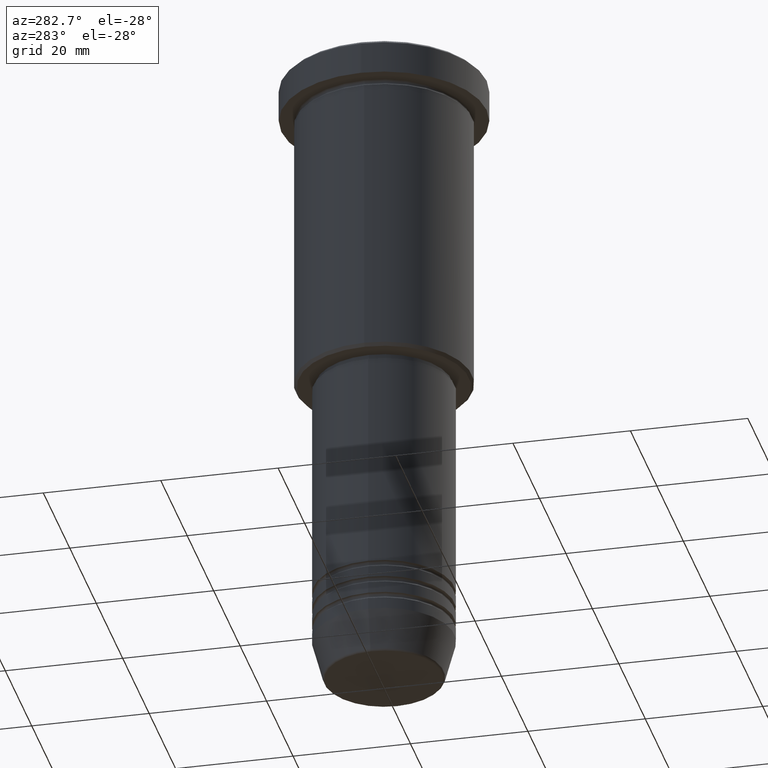
[diagram: clean part render]
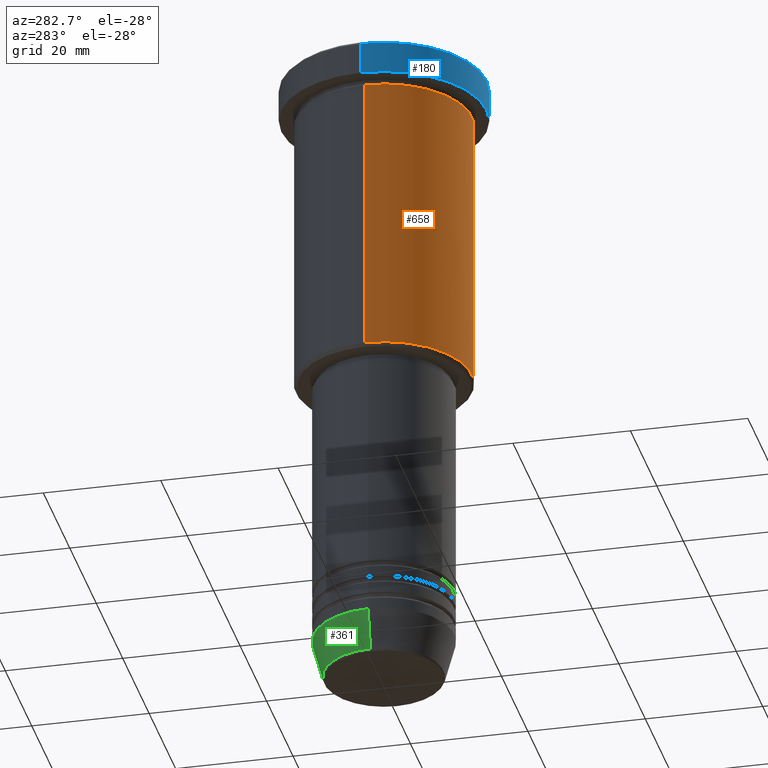
[diagram: same view with three faces highlighted in distinct colors, each labeled with its STEP entity id]
A machine part, auxiliary view with three faces highlighted in distinct colors.
Their STEP definitions:

[orange] entity #658 — the highlighted cylindrical surface (partial cylindrical patch) has radius 15 mm, axis along (-0, -0, 1).
#21 = VERTEX_POINT ( 'NONE', #121 ) ;
#33 = DIRECTION ( 'NONE',  ( -0.000000000000000000, -0.000000000000000000, 1.000000000000000000 ) ) ;
#45 = DIRECTION ( 'NONE',  ( -1.000000000000000000, 0.000000000000000000, 0.000000000000000000 ) ) ;
#121 = CARTESIAN_POINT ( 'NONE',  ( 15.00000000000000000, 0.000000000000000000, -6.999999999999995559 ) ) ;
#131 = EDGE_CURVE ( 'NONE', #443, #21, #901, .T. ) ;
#181 = VECTOR ( 'NONE', #469, 1000.000000000000000 ) ;
#244 = ORIENTED_EDGE ( 'NONE', *, *, #131, .F. ) ;
#265 = CARTESIAN_POINT ( 'NONE',  ( 15.00000000000000000, 0.000000000000000000, 0.000000000000000000 ) ) ;
#284 = AXIS2_PLACEMENT_3D ( 'NONE', #531, #962, #687 ) ;
#309 = EDGE_CURVE ( 'NONE', #686, #730, #903, .T. ) ;
#332 = LINE ( 'NONE', #515, #1095 ) ;
#443 = VERTEX_POINT ( 'NONE', #972 ) ;
#469 = DIRECTION ( 'NONE',  ( -0.000000000000000000, -0.000000000000000000, 1.000000000000000000 ) ) ;
#515 = CARTESIAN_POINT ( 'NONE',  ( -15.00000000000000000, 1.836970198721029589E-15, 0.000000000000000000 ) ) ;
#531 = CARTESIAN_POINT ( 'NONE',  ( 0.000000000000000000, 0.000000000000000000, 0.000000000000000000 ) ) ;
#556 = CARTESIAN_POINT ( 'NONE',  ( 15.00000000000000000, 0.000000000000000000, -55.50000000000000711 ) ) ;
#658 = ADVANCED_FACE ( 'NONE', ( #996 ), #822, .T. ) ;
#660 = ORIENTED_EDGE ( 'NONE', *, *, #946, .F. ) ;
#683 = CARTESIAN_POINT ( 'NONE',  ( 0.000000000000000000, 0.000000000000000000, -55.50000000000000711 ) ) ;
#686 = VERTEX_POINT ( 'NONE', #981 ) ;
#687 = DIRECTION ( 'NONE',  ( 1.000000000000000000, 0.000000000000000000, 0.000000000000000000 ) ) ;
#689 = AXIS2_PLACEMENT_3D ( 'NONE', #702, #904, #806 ) ;
#702 = CARTESIAN_POINT ( 'NONE',  ( 0.000000000000000000, 0.000000000000000000, -6.999999999999995559 ) ) ;
#711 = AXIS2_PLACEMENT_3D ( 'NONE', #683, #33, #45 ) ;
#721 = DIRECTION ( 'NONE',  ( -0.000000000000000000, -0.000000000000000000, 1.000000000000000000 ) ) ;
#730 = VERTEX_POINT ( 'NONE', #556 ) ;
#802 = EDGE_CURVE ( 'NONE', #730, #21, #1081, .T. ) ;
#806 = DIRECTION ( 'NONE',  ( 1.000000000000000000, 0.000000000000000000, 0.000000000000000000 ) ) ;
#822 = CYLINDRICAL_SURFACE ( 'NONE', #284, 15.00000000000000000 ) ;
#901 = CIRCLE ( 'NONE', #689, 15.00000000000000000 ) ;
#903 = CIRCLE ( 'NONE', #711, 15.00000000000000000 ) ;
#904 = DIRECTION ( 'NONE',  ( -0.000000000000000000, -0.000000000000000000, 1.000000000000000000 ) ) ;
#946 = EDGE_CURVE ( 'NONE', #686, #443, #332, .T. ) ;
#962 = DIRECTION ( 'NONE',  ( -0.000000000000000000, -0.000000000000000000, 1.000000000000000000 ) ) ;
#972 = CARTESIAN_POINT ( 'NONE',  ( -15.00000000000000000, 1.836970198721029589E-15, -6.999999999999995559 ) ) ;
#981 = CARTESIAN_POINT ( 'NONE',  ( -15.00000000000000000, 1.836970198721029589E-15, -55.50000000000000711 ) ) ;
#996 = FACE_OUTER_BOUND ( 'NONE', #1044, .T. ) ;
#1044 = EDGE_LOOP ( 'NONE', ( #660, #1049, #1125, #244 ) ) ;
#1049 = ORIENTED_EDGE ( 'NONE', *, *, #309, .T. ) ;
#1081 = LINE ( 'NONE', #265, #181 ) ;
#1095 = VECTOR ( 'NONE', #721, 1000.000000000000000 ) ;
#1125 = ORIENTED_EDGE ( 'NONE', *, *, #802, .T. ) ;

[blue] entity #180 — the highlighted cylindrical surface (partial cylindrical patch) has radius 17.5 mm, axis along (-0, -0, 1).
#8 = AXIS2_PLACEMENT_3D ( 'NONE', #243, #520, #500 ) ;
#61 = LINE ( 'NONE', #1166, #510 ) ;
#147 = VERTEX_POINT ( 'NONE', #887 ) ;
#161 = AXIS2_PLACEMENT_3D ( 'NONE', #638, #631, #736 ) ;
#180 = ADVANCED_FACE ( 'NONE', ( #448 ), #728, .T. ) ;
#243 = CARTESIAN_POINT ( 'NONE',  ( 0.000000000000000000, 0.000000000000000000, -0.5000000000000281997 ) ) ;
#249 = CARTESIAN_POINT ( 'NONE',  ( -17.50000000000000000, 2.143131898507868248E-15, 0.000000000000000000 ) ) ;
#257 = VERTEX_POINT ( 'NONE', #1104 ) ;
#277 = EDGE_CURVE ( 'NONE', #147, #257, #984, .T. ) ;
#289 = ORIENTED_EDGE ( 'NONE', *, *, #665, .F. ) ;
#292 = DIRECTION ( 'NONE',  ( 1.000000000000000000, 0.000000000000000000, 0.000000000000000000 ) ) ;
#303 = VECTOR ( 'NONE', #404, 1000.000000000000000 ) ;
#307 = CARTESIAN_POINT ( 'NONE',  ( 0.000000000000000000, 0.000000000000000000, -5.999999999999995559 ) ) ;
#404 = DIRECTION ( 'NONE',  ( -0.000000000000000000, -0.000000000000000000, 1.000000000000000000 ) ) ;
#426 = VERTEX_POINT ( 'NONE', #880 ) ;
#448 = FACE_OUTER_BOUND ( 'NONE', #957, .T. ) ;
#500 = DIRECTION ( 'NONE',  ( 1.000000000000000000, 0.000000000000000000, 0.000000000000000000 ) ) ;
#510 = VECTOR ( 'NONE', #1068, 1000.000000000000000 ) ;
#520 = DIRECTION ( 'NONE',  ( 0.000000000000000000, 0.000000000000000000, -1.000000000000000000 ) ) ;
#536 = CARTESIAN_POINT ( 'NONE',  ( 17.50000000000000000, 0.000000000000000000, -0.5000000000000281997 ) ) ;
#590 = VERTEX_POINT ( 'NONE', #536 ) ;
#600 = LINE ( 'NONE', #249, #303 ) ;
#631 = DIRECTION ( 'NONE',  ( -0.000000000000000000, -0.000000000000000000, 1.000000000000000000 ) ) ;
#638 = CARTESIAN_POINT ( 'NONE',  ( 0.000000000000000000, 0.000000000000000000, 0.000000000000000000 ) ) ;
#665 = EDGE_CURVE ( 'NONE', #147, #426, #600, .T. ) ;
#681 = ORIENTED_EDGE ( 'NONE', *, *, #960, .T. ) ;
#728 = CYLINDRICAL_SURFACE ( 'NONE', #161, 17.50000000000000000 ) ;
#736 = DIRECTION ( 'NONE',  ( 1.000000000000000000, 0.000000000000000000, 0.000000000000000000 ) ) ;
#765 = ORIENTED_EDGE ( 'NONE', *, *, #1175, .T. ) ;
#784 = ORIENTED_EDGE ( 'NONE', *, *, #277, .T. ) ;
#880 = CARTESIAN_POINT ( 'NONE',  ( -17.50000000000000000, 2.143131898507868248E-15, -0.5000000000000281997 ) ) ;
#887 = CARTESIAN_POINT ( 'NONE',  ( -17.50000000000000000, 2.143131898507868248E-15, -5.999999999999995559 ) ) ;
#957 = EDGE_LOOP ( 'NONE', ( #289, #784, #765, #681 ) ) ;
#960 = EDGE_CURVE ( 'NONE', #590, #426, #1021, .T. ) ;
#967 = DIRECTION ( 'NONE',  ( -0.000000000000000000, -0.000000000000000000, 1.000000000000000000 ) ) ;
#984 = CIRCLE ( 'NONE', #1017, 17.50000000000000000 ) ;
#1017 = AXIS2_PLACEMENT_3D ( 'NONE', #307, #967, #292 ) ;
#1021 = CIRCLE ( 'NONE', #8, 17.50000000000000000 ) ;
#1068 = DIRECTION ( 'NONE',  ( -0.000000000000000000, -0.000000000000000000, 1.000000000000000000 ) ) ;
#1104 = CARTESIAN_POINT ( 'NONE',  ( 17.50000000000000000, 0.000000000000000000, -5.999999999999995559 ) ) ;
#1166 = CARTESIAN_POINT ( 'NONE',  ( 17.50000000000000000, 0.000000000000000000, 0.000000000000000000 ) ) ;
#1175 = EDGE_CURVE ( 'NONE', #257, #590, #61, .T. ) ;

[green] entity #361 — the highlighted conical surface has half-angle 15 deg.
#29 = AXIS2_PLACEMENT_3D ( 'NONE', #1112, #762, #867 ) ;
#54 = LINE ( 'NONE', #402, #105 ) ;
#81 = VECTOR ( 'NONE', #323, 1000.000000000000000 ) ;
#105 = VECTOR ( 'NONE', #1167, 1000.000000000000000 ) ;
#118 = EDGE_CURVE ( 'NONE', #1158, #298, #1165, .T. ) ;
#182 = FACE_OUTER_BOUND ( 'NONE', #1127, .T. ) ;
#233 = ORIENTED_EDGE ( 'NONE', *, *, #118, .T. ) ;
#240 = VERTEX_POINT ( 'NONE', #743 ) ;
#245 = EDGE_CURVE ( 'NONE', #240, #298, #883, .T. ) ;
#298 = VERTEX_POINT ( 'NONE', #585 ) ;
#305 = ORIENTED_EDGE ( 'NONE', *, *, #245, .F. ) ;
#323 = DIRECTION ( 'NONE',  ( -0.2588190451025213501, 3.169619151431772337E-17, 0.9659258262890680902 ) ) ;
#346 = DIRECTION ( 'NONE',  ( 1.000000000000000000, 0.000000000000000000, 0.000000000000000000 ) ) ;
#354 = CARTESIAN_POINT ( 'NONE',  ( 0.000000000000000000, 0.000000000000000000, -104.0000000000000142 ) ) ;
#361 = ADVANCED_FACE ( 'NONE', ( #182 ), #625, .T. ) ;
#402 = CARTESIAN_POINT ( 'NONE',  ( 12.00000000000000000, 0.000000000000000000, -104.0000000000000142 ) ) ;
#497 = ORIENTED_EDGE ( 'NONE', *, *, #837, .T. ) ;
#538 = CARTESIAN_POINT ( 'NONE',  ( 0.000000000000000000, 0.000000000000000000, -104.0000000000000142 ) ) ;
#585 = CARTESIAN_POINT ( 'NONE',  ( -12.00000000000000000, 1.469576158976823947E-15, -104.0000000000000142 ) ) ;
#620 = CARTESIAN_POINT ( 'NONE',  ( -12.00000000000000000, 1.469576158976823947E-15, -104.0000000000000142 ) ) ;
#625 = CONICAL_SURFACE ( 'NONE', #774, 12.00000000000000000, 0.2617993877991500740 ) ;
#695 = CARTESIAN_POINT ( 'NONE',  ( -10.22365507213719305, 1.360806402472382744E-15, -110.6294095225512706 ) ) ;
#743 = CARTESIAN_POINT ( 'NONE',  ( 12.00000000000000000, 0.000000000000000000, -104.0000000000000142 ) ) ;
#760 = CIRCLE ( 'NONE', #29, 10.22365507213719305 ) ;
#762 = DIRECTION ( 'NONE',  ( -0.000000000000000000, -0.000000000000000000, 1.000000000000000000 ) ) ;
#774 = AXIS2_PLACEMENT_3D ( 'NONE', #354, #1107, #1024 ) ;
#815 = CARTESIAN_POINT ( 'NONE',  ( 10.22365507213719305, 0.000000000000000000, -110.6294095225512706 ) ) ;
#821 = ORIENTED_EDGE ( 'NONE', *, *, #1144, .F. ) ;
#837 = EDGE_CURVE ( 'NONE', #1129, #1158, #760, .T. ) ;
#867 = DIRECTION ( 'NONE',  ( 1.000000000000000000, 0.000000000000000000, 0.000000000000000000 ) ) ;
#883 = CIRCLE ( 'NONE', #1111, 12.00000000000000000 ) ;
#934 = DIRECTION ( 'NONE',  ( -0.000000000000000000, -0.000000000000000000, 1.000000000000000000 ) ) ;
#1024 = DIRECTION ( 'NONE',  ( 1.000000000000000000, 0.000000000000000000, 0.000000000000000000 ) ) ;
#1107 = DIRECTION ( 'NONE',  ( -0.000000000000000000, -0.000000000000000000, 1.000000000000000000 ) ) ;
#1111 = AXIS2_PLACEMENT_3D ( 'NONE', #538, #934, #346 ) ;
#1112 = CARTESIAN_POINT ( 'NONE',  ( 0.000000000000000000, 0.000000000000000000, -110.6294095225512706 ) ) ;
#1127 = EDGE_LOOP ( 'NONE', ( #497, #233, #305, #821 ) ) ;
#1129 = VERTEX_POINT ( 'NONE', #815 ) ;
#1144 = EDGE_CURVE ( 'NONE', #1129, #240, #54, .T. ) ;
#1158 = VERTEX_POINT ( 'NONE', #695 ) ;
#1165 = LINE ( 'NONE', #620, #81 ) ;
#1167 = DIRECTION ( 'NONE',  ( 0.2588190451025213501, 0.000000000000000000, 0.9659258262890680902 ) ) ;